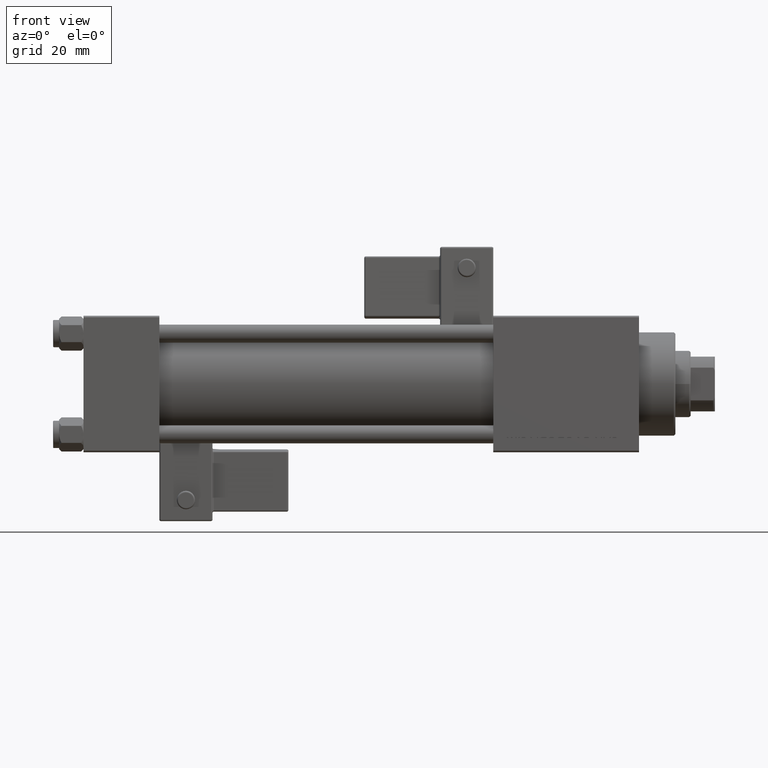
[diagram: clean part render]
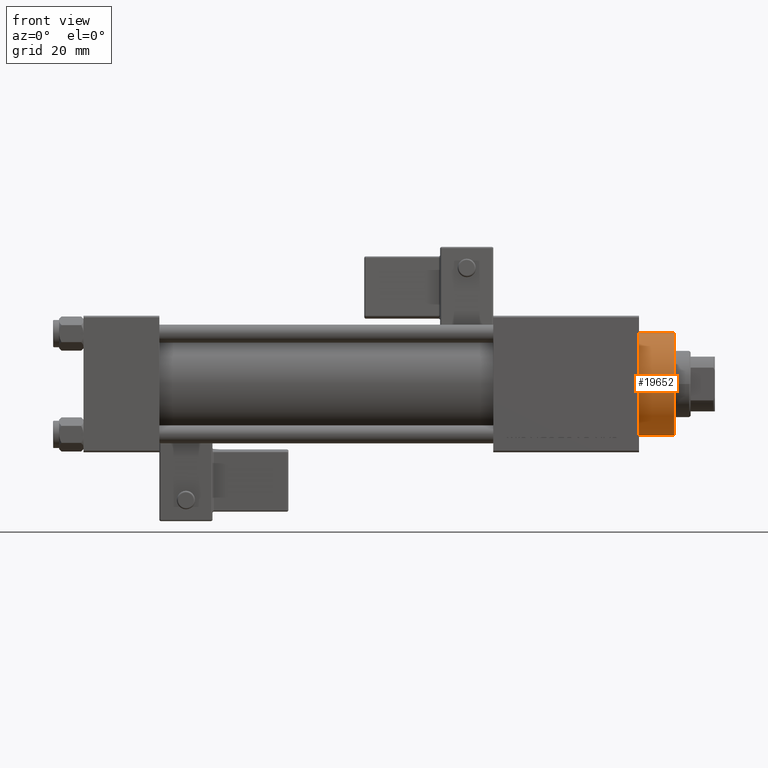
[diagram: same view with one face highlighted and labeled with its STEP entity id]
A machine part, front view. The second image highlights one B-rep face of the part: STEP entity #19652.
In plain terms, the highlighted cylindrical surface (partial cylindrical patch) has radius 17 mm, axis along (-1, -0, -0).
Its self-contained STEP definition (entity closure, byte-faithful):
#589 = VECTOR ( 'NONE', #10921, 1000.000000000000000 ) ;
#929 = VERTEX_POINT ( 'NONE', #37500 ) ;
#1771 = EDGE_CURVE ( 'NONE', #43453, #27718, #20996, .T. ) ;
#2017 = CARTESIAN_POINT ( 'NONE',  ( -17.00000000000000000, 0.000000000000000000, 40.70000000000000284 ) ) ;
#3717 = AXIS2_PLACEMENT_3D ( 'NONE', #33553, #21322, #34646 ) ;
#3865 = FACE_OUTER_BOUND ( 'NONE', #22412, .T. ) ;
#4401 = DIRECTION ( 'NONE',  ( -1.000000000000000000, 0.000000000000000000, 0.000000000000000000 ) ) ;
#9821 = CARTESIAN_POINT ( 'NONE',  ( 17.00000000000000000, 2.081899558550500280E-15, 40.19999999999999574 ) ) ;
#10921 = DIRECTION ( 'NONE',  ( -0.000000000000000000, -0.000000000000000000, -1.000000000000000000 ) ) ;
#14320 = EDGE_CURVE ( 'NONE', #43453, #38036, #39322, .T. ) ;
#15475 = CARTESIAN_POINT ( 'NONE',  ( 17.00000000000000000, 2.081899558550500280E-15, 28.69999999999999929 ) ) ;
#19652 = ADVANCED_FACE ( 'NONE', ( #3865 ), #20469, .T. ) ;
#20469 = CYLINDRICAL_SURFACE ( 'NONE', #41264, 17.00000000000000000 ) ;
#20738 = DIRECTION ( 'NONE',  ( -0.000000000000000000, -0.000000000000000000, -1.000000000000000000 ) ) ;
#20996 = LINE ( 'NONE', #29948, #589 ) ;
#21322 = DIRECTION ( 'NONE',  ( 0.000000000000000000, 0.000000000000000000, -1.000000000000000000 ) ) ;
#22412 = EDGE_LOOP ( 'NONE', ( #43185, #26180, #30478, #30278 ) ) ;
#26180 = ORIENTED_EDGE ( 'NONE', *, *, #14320, .T. ) ;
#27718 = VERTEX_POINT ( 'NONE', #15475 ) ;
#28347 = CARTESIAN_POINT ( 'NONE',  ( 0.000000000000000000, 0.000000000000000000, 40.70000000000000284 ) ) ;
#29948 = CARTESIAN_POINT ( 'NONE',  ( 17.00000000000000000, 2.081899558550500280E-15, 40.70000000000000284 ) ) ;
#30278 = ORIENTED_EDGE ( 'NONE', *, *, #52049, .T. ) ;
#30478 = ORIENTED_EDGE ( 'NONE', *, *, #43189, .T. ) ;
#30591 = LINE ( 'NONE', #2017, #40453 ) ;
#31476 = DIRECTION ( 'NONE',  ( 0.000000000000000000, 0.000000000000000000, 1.000000000000000000 ) ) ;
#33553 = CARTESIAN_POINT ( 'NONE',  ( 0.000000000000000000, 0.000000000000000000, 40.19999999999999574 ) ) ;
#34646 = DIRECTION ( 'NONE',  ( 1.000000000000000000, 0.000000000000000000, 0.000000000000000000 ) ) ;
#36425 = CIRCLE ( 'NONE', #45948, 17.00000000000000000 ) ;
#37500 = CARTESIAN_POINT ( 'NONE',  ( -17.00000000000000000, 0.000000000000000000, 28.69999999999999929 ) ) ;
#38036 = VERTEX_POINT ( 'NONE', #50245 ) ;
#39322 = CIRCLE ( 'NONE', #3717, 17.00000000000000000 ) ;
#40453 = VECTOR ( 'NONE', #47177, 1000.000000000000000 ) ;
#41264 = AXIS2_PLACEMENT_3D ( 'NONE', #28347, #20738, #4401 ) ;
#43185 = ORIENTED_EDGE ( 'NONE', *, *, #1771, .F. ) ;
#43189 = EDGE_CURVE ( 'NONE', #38036, #929, #30591, .T. ) ;
#43453 = VERTEX_POINT ( 'NONE', #9821 ) ;
#44513 = CARTESIAN_POINT ( 'NONE',  ( 0.000000000000000000, 0.000000000000000000, 28.69999999999999929 ) ) ;
#45948 = AXIS2_PLACEMENT_3D ( 'NONE', #44513, #31476, #49393 ) ;
#47177 = DIRECTION ( 'NONE',  ( -0.000000000000000000, -0.000000000000000000, -1.000000000000000000 ) ) ;
#49393 = DIRECTION ( 'NONE',  ( 1.000000000000000000, 0.000000000000000000, 0.000000000000000000 ) ) ;
#50245 = CARTESIAN_POINT ( 'NONE',  ( -17.00000000000000000, 0.000000000000000000, 40.19999999999999574 ) ) ;
#52049 = EDGE_CURVE ( 'NONE', #929, #27718, #36425, .T. ) ;